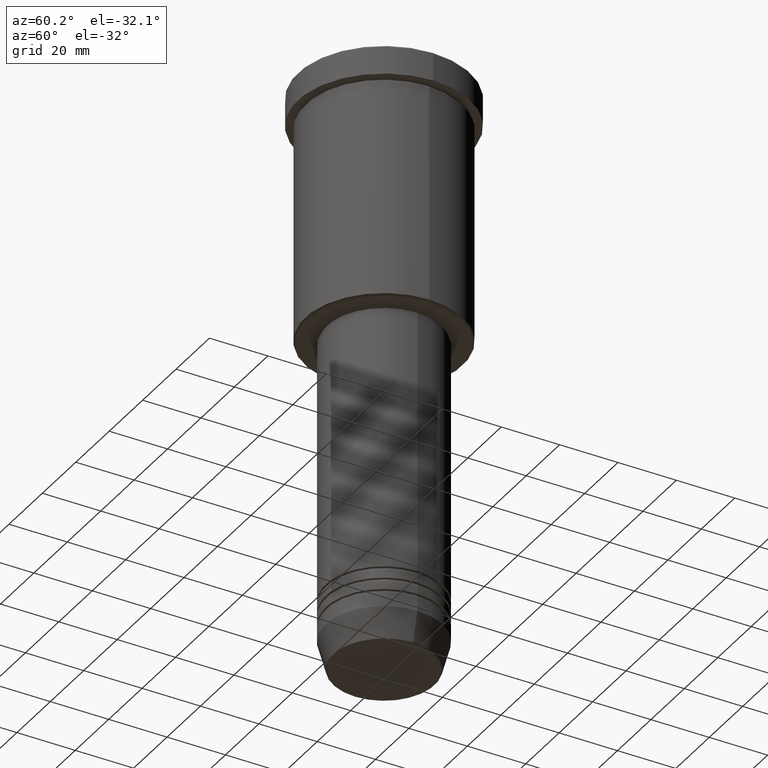
[diagram: clean part render]
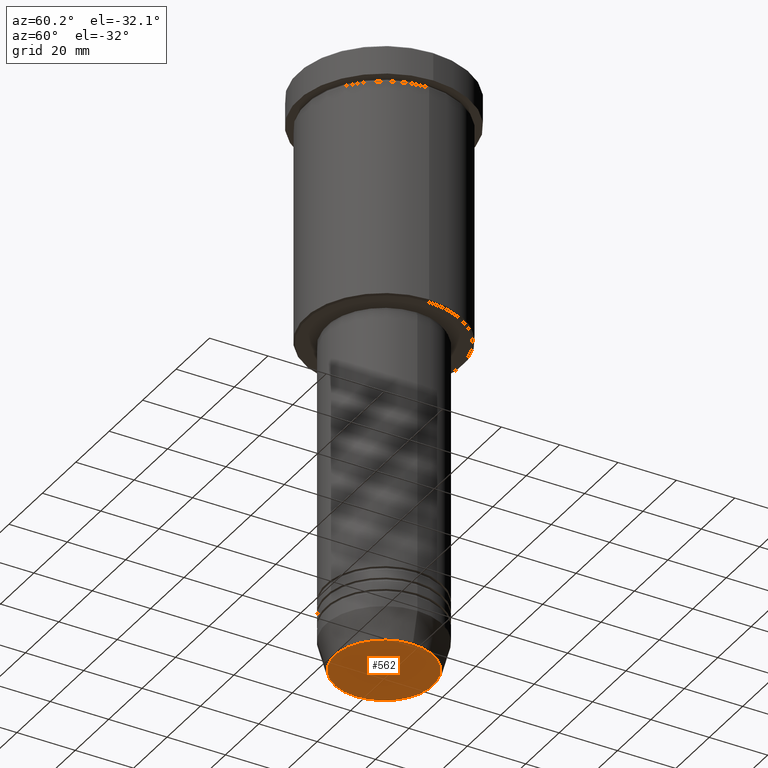
[diagram: same view with one face highlighted and labeled with its STEP entity id]
A machine part, auxiliary view. The second image highlights one B-rep face of the part: STEP entity #562.
In plain terms, the highlighted planar face has unit normal (0, -0, 1).
Its self-contained STEP definition (entity closure, byte-faithful):
#12 = FACE_OUTER_BOUND ( 'NONE', #749, .T. ) ;
#31 = DIRECTION ( 'NONE',  ( 1.000000000000000000, 0.000000000000000000, 0.000000000000000000 ) ) ;
#66 = ORIENTED_EDGE ( 'NONE', *, *, #201, .T. ) ;
#87 = DIRECTION ( 'NONE',  ( 1.000000000000000000, 0.000000000000000000, 0.000000000000000000 ) ) ;
#90 = CIRCLE ( 'NONE', #799, 16.93684458169928675 ) ;
#198 = DIRECTION ( 'NONE',  ( 0.000000000000000000, -0.000000000000000000, 1.000000000000000000 ) ) ;
#201 = EDGE_CURVE ( 'NONE', #468, #1037, #90, .T. ) ;
#204 = PLANE ( 'NONE',  #956 ) ;
#205 = CIRCLE ( 'NONE', #301, 16.93684458169928675 ) ;
#266 = CARTESIAN_POINT ( 'NONE',  ( -16.93684458169928675, 2.103738199747889592E-15, -201.0000000000000000 ) ) ;
#301 = AXIS2_PLACEMENT_3D ( 'NONE', #633, #801, #87 ) ;
#468 = VERTEX_POINT ( 'NONE', #266 ) ;
#470 = EDGE_CURVE ( 'NONE', #1037, #468, #205, .T. ) ;
#562 = ADVANCED_FACE ( 'NONE', ( #12 ), #204, .F. ) ;
#577 = CARTESIAN_POINT ( 'NONE',  ( 0.000000000000000000, 0.000000000000000000, -201.0000000000000000 ) ) ;
#617 = DIRECTION ( 'NONE',  ( 0.000000000000000000, 0.000000000000000000, -1.000000000000000000 ) ) ;
#633 = CARTESIAN_POINT ( 'NONE',  ( 0.000000000000000000, 0.000000000000000000, -201.0000000000000000 ) ) ;
#749 = EDGE_LOOP ( 'NONE', ( #875, #66 ) ) ;
#799 = AXIS2_PLACEMENT_3D ( 'NONE', #1060, #617, #1155 ) ;
#801 = DIRECTION ( 'NONE',  ( 0.000000000000000000, 0.000000000000000000, -1.000000000000000000 ) ) ;
#875 = ORIENTED_EDGE ( 'NONE', *, *, #470, .T. ) ;
#949 = CARTESIAN_POINT ( 'NONE',  ( 16.93684458169928675, 0.000000000000000000, -201.0000000000000000 ) ) ;
#956 = AXIS2_PLACEMENT_3D ( 'NONE', #577, #198, #31 ) ;
#1037 = VERTEX_POINT ( 'NONE', #949 ) ;
#1060 = CARTESIAN_POINT ( 'NONE',  ( 0.000000000000000000, 0.000000000000000000, -201.0000000000000000 ) ) ;
#1155 = DIRECTION ( 'NONE',  ( 1.000000000000000000, 0.000000000000000000, 0.000000000000000000 ) ) ;